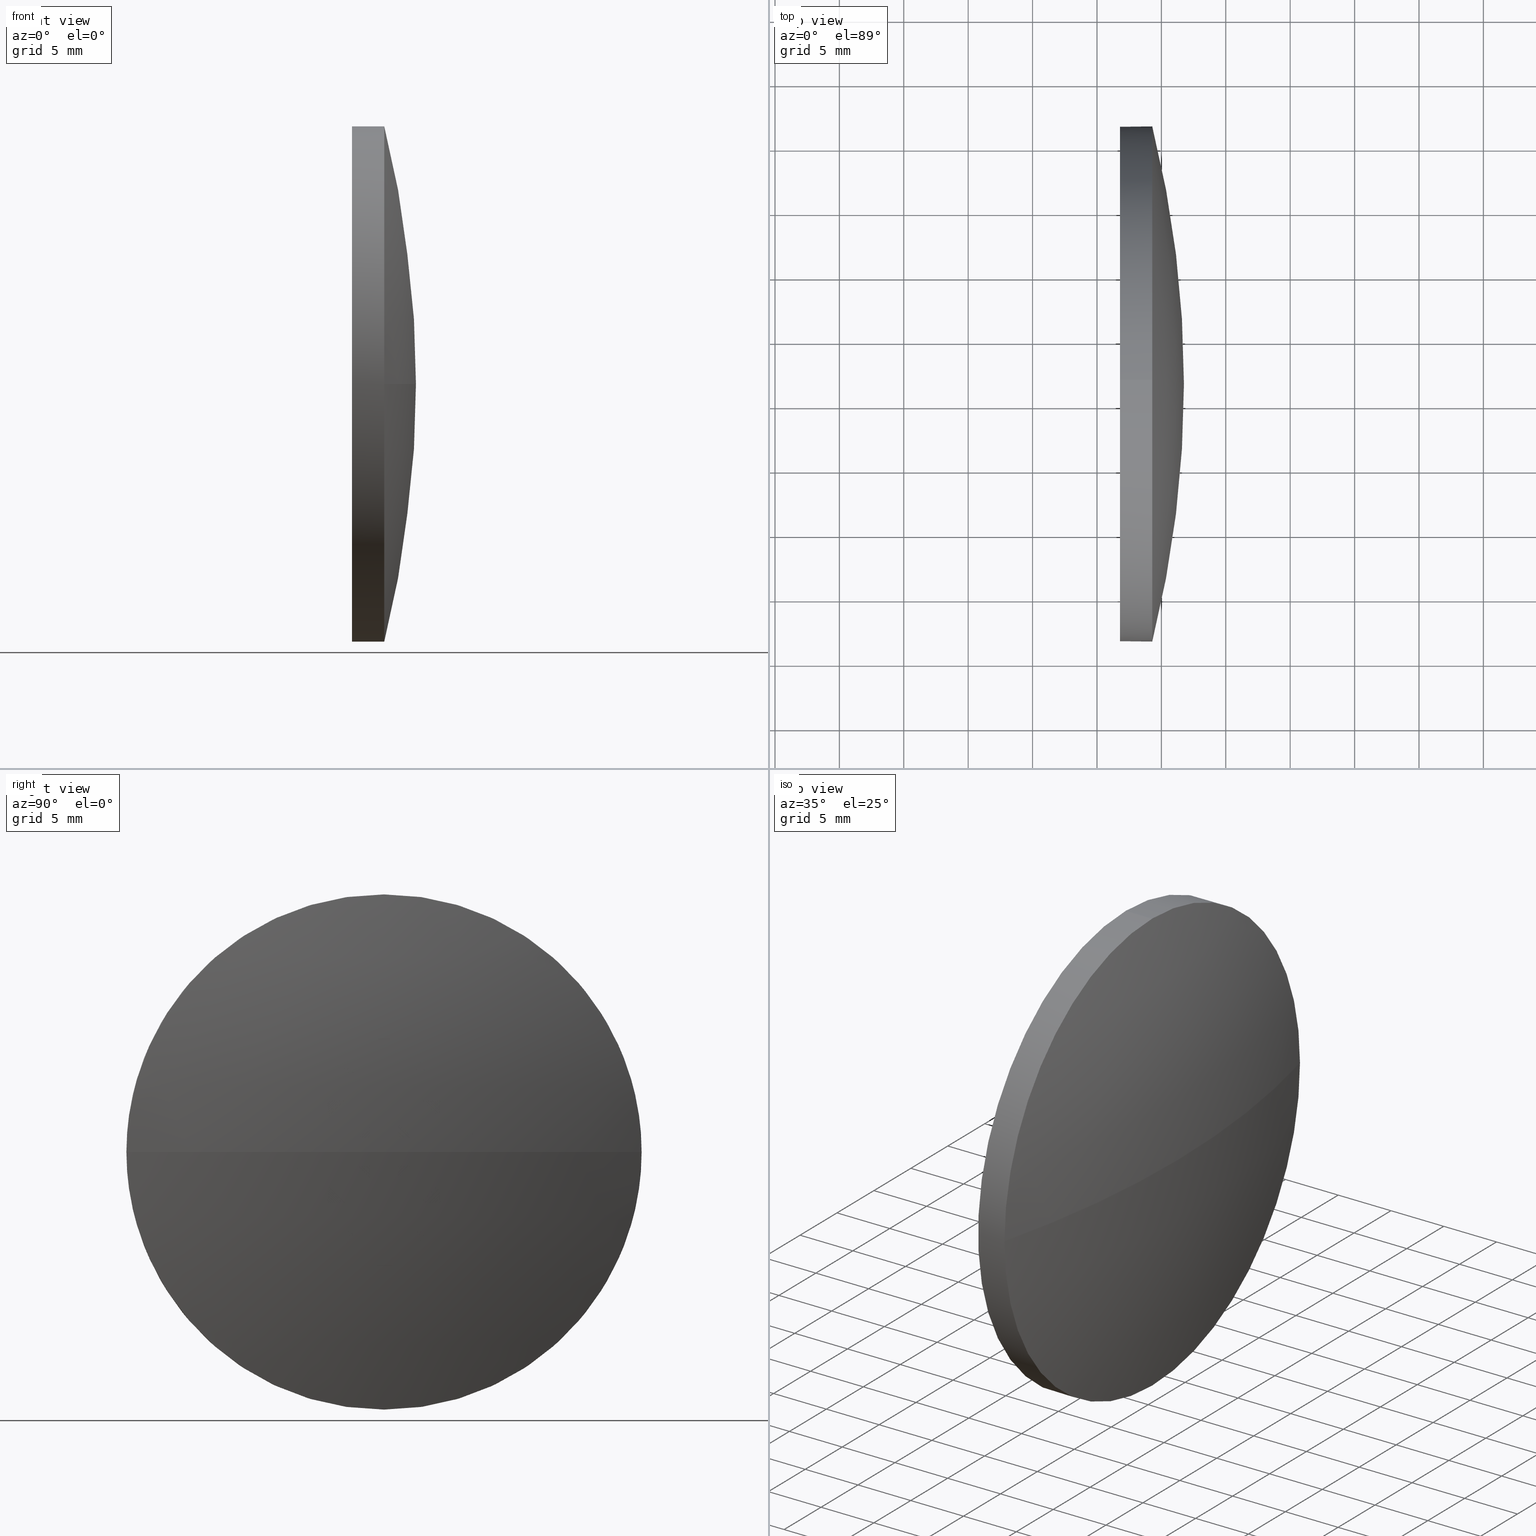
[diagram: canonical four-view strip — front | top / right | iso, engineering-drawing reading convention]
A machine part, canonical four-view strip (front | top / right | iso — engineering-drawing reading convention). The complete STEP part file that produces these views, byte-faithful:
ISO-10303-21;
HEADER;
FILE_DESCRIPTION (( 'STEP AP214' ),
    '1' );
FILE_NAME ('100060.STEP',
    '2019-04-30T03:12:31',
    ( '' ),
    ( '' ),
    'SwSTEP 2.0',
    'SolidWorks 2016',
    '' );
FILE_SCHEMA (( 'AUTOMOTIVE_DESIGN' ));
ENDSEC;

DATA;
#1 = CARTESIAN_POINT ( 'NONE',  ( 459.2914818533709500, 106.5576231808466900, -19.99999999999998900 ) ) ;
#2 = DIRECTION ( 'NONE',  ( -1.000000000000000000, -0.0000000000000000000, -0.0000000000000000000 ) ) ;
#3 = SURFACE_SIDE_STYLE ('',( #80 ) ) ;
#4 = ORIENTED_EDGE ( 'NONE', *, *, #102, .F. ) ;
#5 = SURFACE_STYLE_USAGE ( .BOTH. , #3 ) ;
#6 = FACE_OUTER_BOUND ( 'NONE', #148, .T. ) ;
#7 = DIRECTION ( 'NONE',  ( -1.000000000000000000, -0.0000000000000000000, -0.0000000000000000000 ) ) ;
#8 = CARTESIAN_POINT ( 'NONE',  ( 456.7914818533709500, 106.5576231808466900, -19.99999999999998900 ) ) ;
#9 = DIRECTION ( 'NONE',  ( 0.0000000000000000000, 1.000000000000000000, 0.0000000000000000000 ) ) ;
#10 = PRESENTATION_STYLE_ASSIGNMENT (( #43 ) ) ;
#11 = ADVANCED_FACE ( 'NONE', ( #60 ), #164, .T. ) ;
#12 = AXIS2_PLACEMENT_3D ( 'NONE', #21, #64, #93 ) ;
#13 = ORIENTED_EDGE ( 'NONE', *, *, #90, .F. ) ;
#14 = VECTOR ( 'NONE', #135, 1000.000000000000000 ) ;
#15 = ORIENTED_EDGE ( 'NONE', *, *, #17, .F. ) ;
#16 = DIRECTION ( 'NONE',  ( 0.0000000000000000000, 0.0000000000000000000, 1.000000000000000000 ) ) ;
#17 = EDGE_CURVE ( 'NONE', #185, #54, #184, .T. ) ;
#18 = APPLICATION_CONTEXT ( 'automotive_design' ) ;
#19 = EDGE_CURVE ( 'NONE', #54, #146, #44, .T. ) ;
#20 = FILL_AREA_STYLE_COLOUR ( '', #177 ) ;
#21 = CARTESIAN_POINT ( 'NONE',  ( 379.2206688452406500, 106.5576231808466300, 0.0000000000000000000 ) ) ;
#22 = DIRECTION ( 'NONE',  ( -1.000000000000000000, -0.0000000000000000000, -0.0000000000000000000 ) ) ;
#23 = ORIENTED_EDGE ( 'NONE', *, *, #77, .T. ) ;
#24 =( GEOMETRIC_REPRESENTATION_CONTEXT ( 3 ) GLOBAL_UNCERTAINTY_ASSIGNED_CONTEXT ( ( #68 ) ) GLOBAL_UNIT_ASSIGNED_CONTEXT ( ( #31, #165, #163 ) ) REPRESENTATION_CONTEXT ( 'NONE', 'WORKASPACE' ) );
#25 = VECTOR ( 'NONE', #70, 1000.000000000000000 ) ;
#26 = ORIENTED_EDGE ( 'NONE', *, *, #123, .F. ) ;
#27 = CARTESIAN_POINT ( 'NONE',  ( 461.7514818533708800, 106.5576231808466300, 0.0000000000000000000 ) ) ;
#28 = CIRCLE ( 'NONE', #12, 82.53081300813025200 ) ;
#29 = DIRECTION ( 'NONE',  ( 0.0000000000000000000, 1.224646799147353200E-016, -1.000000000000000000 ) ) ;
#30 = DIRECTION ( 'NONE',  ( 0.0000000000000000000, 0.0000000000000000000, 1.000000000000000000 ) ) ;
#31 =( LENGTH_UNIT ( ) NAMED_UNIT ( * ) SI_UNIT ( .MILLI., .METRE. ) );
#32 = CARTESIAN_POINT ( 'NONE',  ( 379.2206688452406500, 106.5576231808466300, 0.0000000000000000000 ) ) ;
#33 = ADVANCED_BREP_SHAPE_REPRESENTATION ( '100060', ( #174, #117 ), #24 ) ;
#34 = PRESENTATION_LAYER_ASSIGNMENT (  '', '', ( #57 ) ) ;
#35 = ADVANCED_FACE ( 'NONE', ( #152 ), #42, .F. ) ;
#36 = EDGE_LOOP ( 'NONE', ( #161, #131, #26, #160, #129 ) ) ;
#37 = AXIS2_PLACEMENT_3D ( 'NONE', #78, #22, #45 ) ;
#38 = FACE_OUTER_BOUND ( 'NONE', #36, .T. ) ;
#39 = VERTEX_POINT ( 'NONE', #27 ) ;
#40 = CARTESIAN_POINT ( 'NONE',  ( 459.2914818533709500, 106.5576231808466900, 0.0000000000000000000 ) ) ;
#41 = CARTESIAN_POINT ( 'NONE',  ( 459.2914818533709500, 126.5576231808466500, 0.0000000000000000000 ) ) ;
#42 = PLANE ( 'NONE',  #133 ) ;
#43 = SURFACE_STYLE_USAGE ( .BOTH. , #62 ) ;
#44 = LINE ( 'NONE', #150, #14 ) ;
#45 = DIRECTION ( 'NONE',  ( 0.0000000000000000000, 0.0000000000000000000, 1.000000000000000000 ) ) ;
#46 = AXIS2_PLACEMENT_3D ( 'NONE', #111, #124, #143 ) ;
#47 = ORIENTED_EDGE ( 'NONE', *, *, #137, .T. ) ;
#48 = DIRECTION ( 'NONE',  ( 0.0000000000000000000, 0.0000000000000000000, 1.000000000000000000 ) ) ;
#49 = PRODUCT_DEFINITION_SHAPE ( 'NONE', 'NONE',  #69 ) ;
#50 = FILL_AREA_STYLE ('',( #20 ) ) ;
#51 = CYLINDRICAL_SURFACE ( 'NONE', #119, 19.99999999999998900 ) ;
#52 = ORIENTED_EDGE ( 'NONE', *, *, #116, .F. ) ;
#53 = CIRCLE ( 'NONE', #46, 19.99999999999998900 ) ;
#54 = VERTEX_POINT ( 'NONE', #104 ) ;
#55 =( GEOMETRIC_REPRESENTATION_CONTEXT ( 3 ) GLOBAL_UNCERTAINTY_ASSIGNED_CONTEXT ( ( #156 ) ) GLOBAL_UNIT_ASSIGNED_CONTEXT ( ( #122, #63, #166 ) ) REPRESENTATION_CONTEXT ( 'NONE', 'WORKASPACE' ) );
#56 = DIRECTION ( 'NONE',  ( -1.000000000000000000, -0.0000000000000000000, -0.0000000000000000000 ) ) ;
#57 = STYLED_ITEM ( 'NONE', ( #172 ), #33 ) ;
#58 = DIRECTION ( 'NONE',  ( 0.0000000000000000000, 0.0000000000000000000, 1.000000000000000000 ) ) ;
#59 = DIRECTION ( 'NONE',  ( -1.000000000000000000, -0.0000000000000000000, -0.0000000000000000000 ) ) ;
#60 = FACE_OUTER_BOUND ( 'NONE', #110, .T. ) ;
#61 = AXIS2_PLACEMENT_3D ( 'NONE', #125, #92, #48 ) ;
#62 = SURFACE_SIDE_STYLE ('',( #100 ) ) ;
#63 =( NAMED_UNIT ( * ) PLANE_ANGLE_UNIT ( ) SI_UNIT ( $, .RADIAN. ) );
#64 = DIRECTION ( 'NONE',  ( -0.0000000000000000000, 0.0000000000000000000, 1.000000000000000000 ) ) ;
#65 = DIRECTION ( 'NONE',  ( -0.0000000000000000000, 0.0000000000000000000, -1.000000000000000000 ) ) ;
#66 = COLOUR_RGB ( '',1.000000000000000000, 1.000000000000000000, 1.000000000000000000 ) ;
#67 = EDGE_CURVE ( 'NONE', #95, #85, #132, .T. ) ;
#68 = UNCERTAINTY_MEASURE_WITH_UNIT (LENGTH_MEASURE( 1.000000000000000100E-005 ), #31, 'distance_accuracy_value', 'NONE');
#69 = PRODUCT_DEFINITION ( 'δ֪', '', #176, #182 ) ;
#70 = DIRECTION ( 'NONE',  ( -1.000000000000000000, -0.0000000000000000000, -0.0000000000000000000 ) ) ;
#71 = CARTESIAN_POINT ( 'NONE',  ( 456.7914818533709500, 106.5576231808466900, 0.0000000000000000000 ) ) ;
#72 = EDGE_LOOP ( 'NONE', ( #136, #47 ) ) ;
#73 = DIRECTION ( 'NONE',  ( 1.000000000000000000, 0.0000000000000000000, 0.0000000000000000000 ) ) ;
#74 = APPLICATION_PROTOCOL_DEFINITION ( 'draft international standard', 'automotive_design', 1998, #18 ) ;
#75 = CARTESIAN_POINT ( 'NONE',  ( 456.7914818533709500, 106.5576231808466900, 19.99999999999998900 ) ) ;
#76 = ORIENTED_EDGE ( 'NONE', *, *, #19, .T. ) ;
#77 = EDGE_CURVE ( 'NONE', #39, #185, #175, .T. ) ;
#78 = CARTESIAN_POINT ( 'NONE',  ( 447.2849845335977100, 106.5576231808466900, 0.0000000000000000000 ) ) ;
#79 = MECHANICAL_DESIGN_GEOMETRIC_PRESENTATION_REPRESENTATION (  '', ( #57 ), #55 ) ;
#80 = SURFACE_STYLE_FILL_AREA ( #178 ) ;
#81 = ORIENTED_EDGE ( 'NONE', *, *, #67, .F. ) ;
#82 = PRODUCT_RELATED_PRODUCT_CATEGORY ( 'part', '', ( #101 ) ) ;
#83 = AXIS2_PLACEMENT_3D ( 'NONE', #32, #65, #9 ) ;
#84 = AXIS2_PLACEMENT_3D ( 'NONE', #40, #59, #153 ) ;
#85 = VERTEX_POINT ( 'NONE', #1 ) ;
#86 = CARTESIAN_POINT ( 'NONE',  ( 447.2849845335977100, 106.5576231808466900, 0.0000000000000000000 ) ) ;
#87 = CARTESIAN_POINT ( 'NONE',  ( 459.2914818533709500, 106.5576231808466900, 0.0000000000000000000 ) ) ;
#88 = ORIENTED_EDGE ( 'NONE', *, *, #116, .T. ) ;
#89 = DIRECTION ( 'NONE',  ( 0.0000000000000000000, 0.0000000000000000000, 1.000000000000000000 ) ) ;
#90 = EDGE_CURVE ( 'NONE', #85, #140, #126, .T. ) ;
#91 = FILL_AREA_STYLE_COLOUR ( '', #66 ) ;
#92 = DIRECTION ( 'NONE',  ( -1.000000000000000000, -0.0000000000000000000, -0.0000000000000000000 ) ) ;
#93 = DIRECTION ( 'NONE',  ( 1.000000000000000000, 0.0000000000000000000, 0.0000000000000000000 ) ) ;
#94 = DIRECTION ( 'NONE',  ( -1.000000000000000000, -0.0000000000000000000, -0.0000000000000000000 ) ) ;
#95 = VERTEX_POINT ( 'NONE', #41 ) ;
#96 = ADVANCED_FACE ( 'NONE', ( #6 ), #51, .T. ) ;
#97 = ORIENTED_EDGE ( 'NONE', *, *, #77, .F. ) ;
#98 = AXIS2_PLACEMENT_3D ( 'NONE', #154, #94, #142 ) ;
#99 = AXIS2_PLACEMENT_3D ( 'NONE', #121, #151, #134 ) ;
#100 = SURFACE_STYLE_FILL_AREA ( #50 ) ;
#101 = PRODUCT ( '100060', '100060', '', ( #167 ) ) ;
#102 = EDGE_CURVE ( 'NONE', #85, #185, #149, .T. ) ;
#103 = ORIENTED_EDGE ( 'NONE', *, *, #137, .F. ) ;
#104 = CARTESIAN_POINT ( 'NONE',  ( 459.2914818533709500, 106.5576231808466900, 19.99999999999998900 ) ) ;
#105 = UNCERTAINTY_MEASURE_WITH_UNIT (LENGTH_MEASURE( 1.000000000000000100E-005 ), #169, 'distance_accuracy_value', 'NONE');
#106 = CARTESIAN_POINT ( 'NONE',  ( 379.2206688452406500, 106.5576231808466300, 0.0000000000000000000 ) ) ;
#107 = CARTESIAN_POINT ( 'NONE',  ( 447.2849845335977100, 106.5576231808466900, -19.99999999999998900 ) ) ;
#108 = CARTESIAN_POINT ( 'NONE',  ( 456.7914818533709500, 106.5576231808466900, 0.0000000000000000000 ) ) ;
#109 =( NAMED_UNIT ( * ) SI_UNIT ( $, .STERADIAN. ) SOLID_ANGLE_UNIT ( ) );
#110 = EDGE_LOOP ( 'NONE', ( #97, #88, #114, #15 ) ) ;
#111 = CARTESIAN_POINT ( 'NONE',  ( 459.2914818533709500, 106.5576231808466900, 0.0000000000000000000 ) ) ;
#112 = CARTESIAN_POINT ( 'NONE',  ( 459.2914818533709500, 86.55762318084667600, -2.449293598294701000E-015 ) ) ;
#113 = AXIS2_PLACEMENT_3D ( 'NONE', #108, #7, #89 ) ;
#114 = ORIENTED_EDGE ( 'NONE', *, *, #173, .F. ) ;
#115 = CYLINDRICAL_SURFACE ( 'NONE', #37, 19.99999999999998900 ) ;
#116 = EDGE_CURVE ( 'NONE', #39, #95, #28, .T. ) ;
#117 = AXIS2_PLACEMENT_3D ( 'NONE', #157, #30, #138 ) ;
#118 = CIRCLE ( 'NONE', #113, 19.99999999999998900 ) ;
#119 = AXIS2_PLACEMENT_3D ( 'NONE', #86, #56, #16 ) ;
#120 = DIRECTION ( 'NONE',  ( 0.0000000000000000000, 1.000000000000000000, 1.224646799147353200E-016 ) ) ;
#121 = CARTESIAN_POINT ( 'NONE',  ( 379.2206688452406500, 106.5576231808466300, 0.0000000000000000000 ) ) ;
#122 =( LENGTH_UNIT ( ) NAMED_UNIT ( * ) SI_UNIT ( .MILLI., .METRE. ) );
#123 = EDGE_CURVE ( 'NONE', #146, #140, #118, .T. ) ;
#124 = DIRECTION ( 'NONE',  ( -1.000000000000000000, -0.0000000000000000000, -0.0000000000000000000 ) ) ;
#125 = CARTESIAN_POINT ( 'NONE',  ( 459.2914818533709500, 106.5576231808466900, 0.0000000000000000000 ) ) ;
#126 = LINE ( 'NONE', #107, #25 ) ;
#127 = ORIENTED_EDGE ( 'NONE', *, *, #102, .T. ) ;
#128 = FACE_OUTER_BOUND ( 'NONE', #179, .T. ) ;
#129 = ORIENTED_EDGE ( 'NONE', *, *, #173, .T. ) ;
#130 = PRESENTATION_LAYER_ASSIGNMENT (  '', '', ( #186 ) ) ;
#131 = ORIENTED_EDGE ( 'NONE', *, *, #90, .T. ) ;
#132 = CIRCLE ( 'NONE', #158, 19.99999999999998900 ) ;
#133 = AXIS2_PLACEMENT_3D ( 'NONE', #71, #73, #159 ) ;
#134 = DIRECTION ( 'NONE',  ( 0.0000000000000000000, 1.000000000000000000, 0.0000000000000000000 ) ) ;
#135 = DIRECTION ( 'NONE',  ( -1.000000000000000000, -0.0000000000000000000, -0.0000000000000000000 ) ) ;
#136 = ORIENTED_EDGE ( 'NONE', *, *, #123, .T. ) ;
#137 = EDGE_CURVE ( 'NONE', #140, #146, #155, .T. ) ;
#138 = DIRECTION ( 'NONE',  ( 1.000000000000000000, 0.0000000000000000000, 0.0000000000000000000 ) ) ;
#139 = APPLICATION_CONTEXT ( 'automotive_design' ) ;
#140 = VERTEX_POINT ( 'NONE', #8 ) ;
#141 =( NAMED_UNIT ( * ) PLANE_ANGLE_UNIT ( ) SI_UNIT ( $, .RADIAN. ) );
#142 = DIRECTION ( 'NONE',  ( 0.0000000000000000000, 0.0000000000000000000, 1.000000000000000000 ) ) ;
#143 = DIRECTION ( 'NONE',  ( 0.0000000000000000000, 0.0000000000000000000, 1.000000000000000000 ) ) ;
#144 = CLOSED_SHELL ( 'NONE', ( #171, #183, #11, #96, #35 ) ) ;
#145 = SPHERICAL_SURFACE ( 'NONE', #83, 82.53081300813028100 ) ;
#146 = VERTEX_POINT ( 'NONE', #75 ) ;
#147 = SHAPE_DEFINITION_REPRESENTATION ( #49, #33 ) ;
#148 = EDGE_LOOP ( 'NONE', ( #13, #127, #168, #76, #103 ) ) ;
#149 = CIRCLE ( 'NONE', #61, 19.99999999999998900 ) ;
#150 = CARTESIAN_POINT ( 'NONE',  ( 447.2849845335977100, 106.5576231808466900, 19.99999999999998900 ) ) ;
#151 = DIRECTION ( 'NONE',  ( -0.0000000000000000000, 0.0000000000000000000, -1.000000000000000000 ) ) ;
#152 = FACE_OUTER_BOUND ( 'NONE', #72, .T. ) ;
#153 = DIRECTION ( 'NONE',  ( 0.0000000000000000000, 0.0000000000000000000, 1.000000000000000000 ) ) ;
#154 = CARTESIAN_POINT ( 'NONE',  ( 456.7914818533709500, 106.5576231808466900, 0.0000000000000000000 ) ) ;
#155 = CIRCLE ( 'NONE', #98, 19.99999999999998900 ) ;
#156 = UNCERTAINTY_MEASURE_WITH_UNIT (LENGTH_MEASURE( 1.000000000000000100E-005 ), #122, 'distance_accuracy_value', 'NONE');
#157 = CARTESIAN_POINT ( 'NONE',  ( 0.0000000000000000000, 0.0000000000000000000, 0.0000000000000000000 ) ) ;
#158 = AXIS2_PLACEMENT_3D ( 'NONE', #87, #2, #58 ) ;
#159 = DIRECTION ( 'NONE',  ( 0.0000000000000000000, 0.0000000000000000000, -1.000000000000000000 ) ) ;
#160 = ORIENTED_EDGE ( 'NONE', *, *, #19, .F. ) ;
#161 = ORIENTED_EDGE ( 'NONE', *, *, #67, .T. ) ;
#162 = MECHANICAL_DESIGN_GEOMETRIC_PRESENTATION_REPRESENTATION (  '', ( #186 ), #170 ) ;
#163 =( NAMED_UNIT ( * ) SI_UNIT ( $, .STERADIAN. ) SOLID_ANGLE_UNIT ( ) );
#164 = SPHERICAL_SURFACE ( 'NONE', #99, 82.53081300813028100 ) ;
#165 =( NAMED_UNIT ( * ) PLANE_ANGLE_UNIT ( ) SI_UNIT ( $, .RADIAN. ) );
#166 =( NAMED_UNIT ( * ) SI_UNIT ( $, .STERADIAN. ) SOLID_ANGLE_UNIT ( ) );
#167 = PRODUCT_CONTEXT ( 'NONE', #18, 'mechanical' ) ;
#168 = ORIENTED_EDGE ( 'NONE', *, *, #17, .T. ) ;
#169 =( LENGTH_UNIT ( ) NAMED_UNIT ( * ) SI_UNIT ( .MILLI., .METRE. ) );
#170 =( GEOMETRIC_REPRESENTATION_CONTEXT ( 3 ) GLOBAL_UNCERTAINTY_ASSIGNED_CONTEXT ( ( #105 ) ) GLOBAL_UNIT_ASSIGNED_CONTEXT ( ( #169, #141, #109 ) ) REPRESENTATION_CONTEXT ( 'NONE', 'WORKASPACE' ) );
#171 = ADVANCED_FACE ( 'NONE', ( #38 ), #115, .T. ) ;
#172 = PRESENTATION_STYLE_ASSIGNMENT (( #5 ) ) ;
#173 = EDGE_CURVE ( 'NONE', #54, #95, #53, .T. ) ;
#174 = MANIFOLD_SOLID_BREP ( '��ת1', #144 ) ;
#175 = CIRCLE ( 'NONE', #180, 82.53081300813028100 ) ;
#176 = PRODUCT_DEFINITION_FORMATION_WITH_SPECIFIED_SOURCE ( '�κ�', '', #101, .NOT_KNOWN. ) ;
#177 = COLOUR_RGB ( '',1.000000000000000000, 1.000000000000000000, 1.000000000000000000 ) ;
#178 = FILL_AREA_STYLE ('',( #91 ) ) ;
#179 = EDGE_LOOP ( 'NONE', ( #52, #23, #4, #81 ) ) ;
#180 = AXIS2_PLACEMENT_3D ( 'NONE', #106, #29, #120 ) ;
#181 = APPLICATION_PROTOCOL_DEFINITION ( 'draft international standard', 'automotive_design', 1998, #139 ) ;
#182 = PRODUCT_DEFINITION_CONTEXT ( 'detailed design', #139, 'design' ) ;
#183 = ADVANCED_FACE ( 'NONE', ( #128 ), #145, .T. ) ;
#184 = CIRCLE ( 'NONE', #84, 19.99999999999998900 ) ;
#185 = VERTEX_POINT ( 'NONE', #112 ) ;
#186 = STYLED_ITEM ( 'NONE', ( #10 ), #174 ) ;
ENDSEC;
END-ISO-10303-21;
